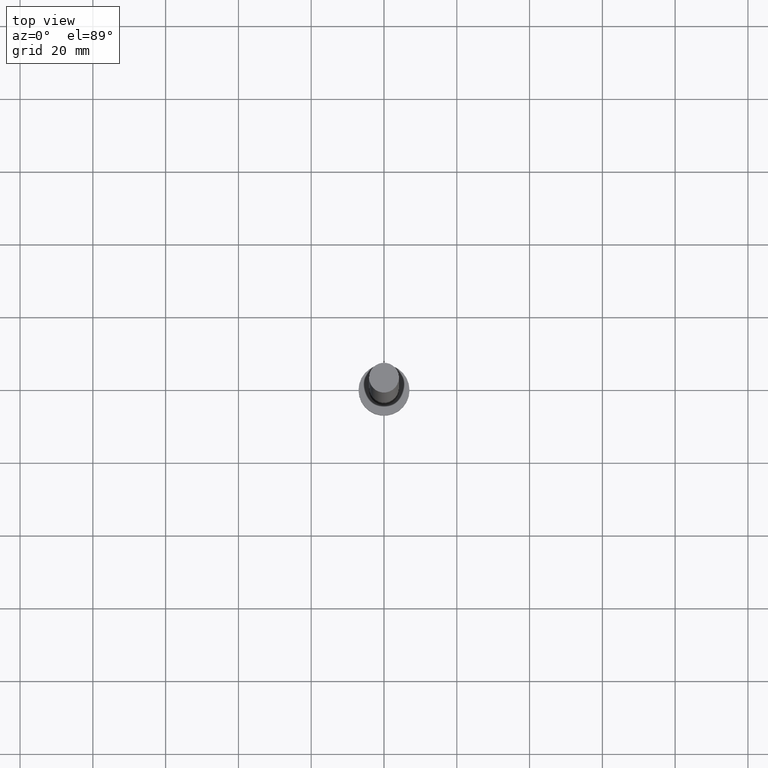
[diagram: clean part render]
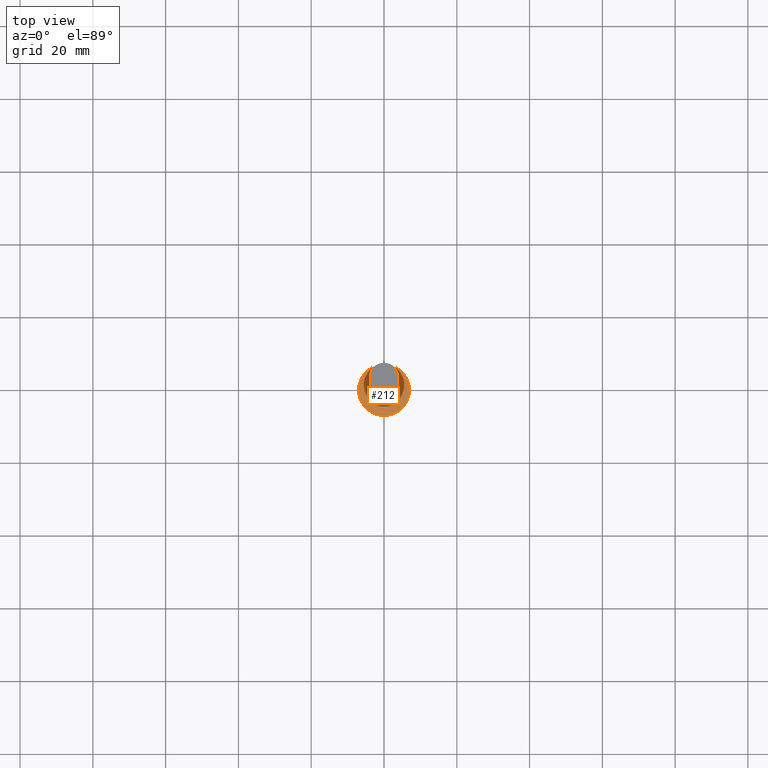
[diagram: same view with one face highlighted and labeled with its STEP entity id]
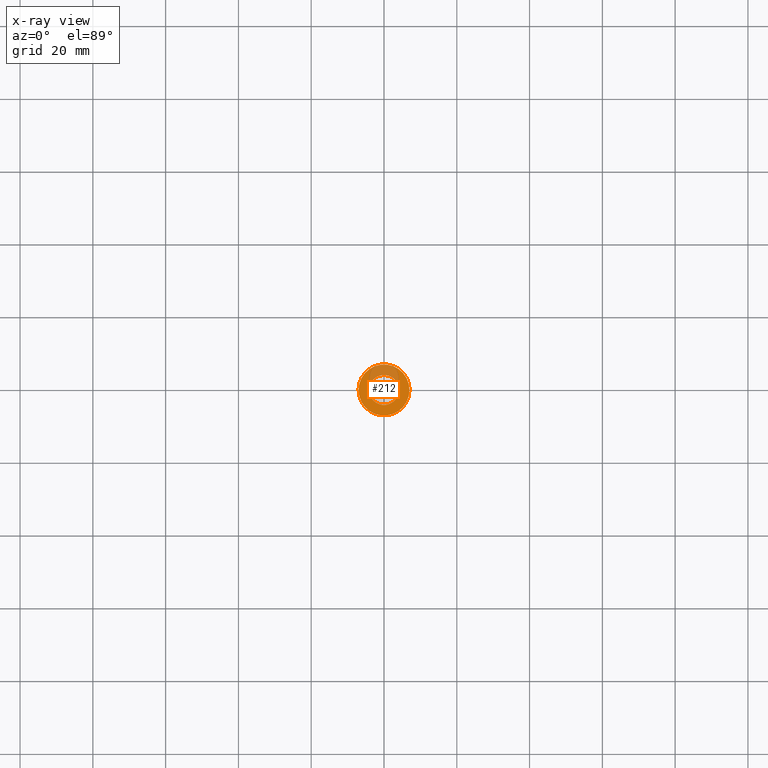
[diagram: x-ray of the same camera — body ghosted, the highlighted face saturated]
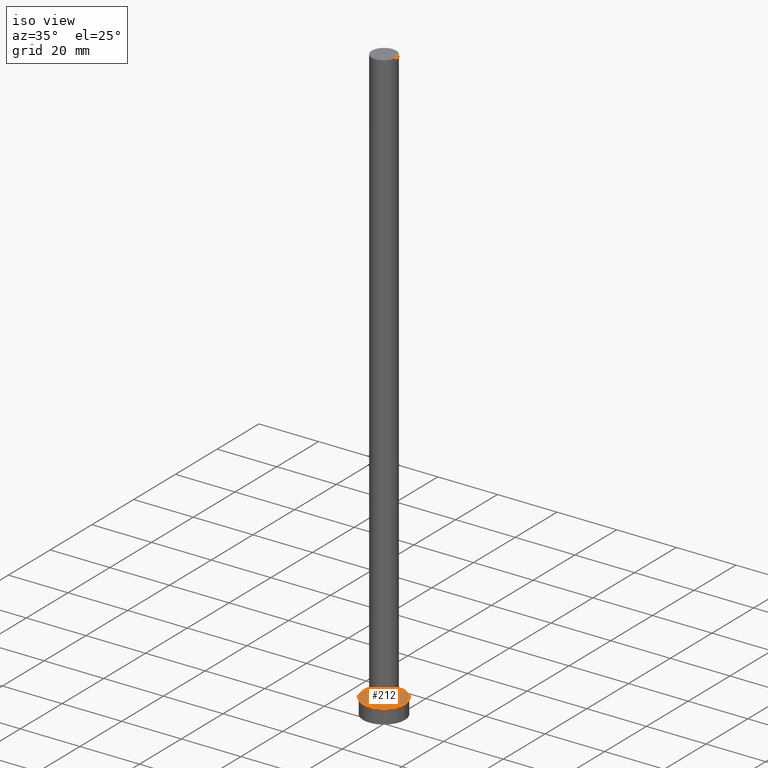
[diagram: same view with one face highlighted and labeled with its STEP entity id]
A machine part, top view. The second image highlights one B-rep face of the part: STEP entity #212.
The next image is the same camera in x-ray: the body ghosted, the highlighted face saturated — about 26% of this face is hidden behind the body in this view.
A second angle (iso view) of the same face is appended — the face is thin or edge-on in the first view.
In plain terms, the highlighted planar face has unit normal (0, 0, 1).
Its self-contained STEP definition (entity closure, byte-faithful):
#4 = DIRECTION ( 'NONE',  ( 0.000000000000000000, 0.000000000000000000, 1.000000000000000000 ) ) ;
#9 = CARTESIAN_POINT ( 'NONE',  ( 7.000000000000000000, 8.572527594031473190E-16, 5.000000000000000000 ) ) ;
#14 = EDGE_CURVE ( 'NONE', #32, #193, #102, .T. ) ;
#19 = DIRECTION ( 'NONE',  ( 1.000000000000000000, 0.000000000000000000, 0.000000000000000000 ) ) ;
#22 = DIRECTION ( 'NONE',  ( 1.000000000000000000, 0.000000000000000000, 0.000000000000000000 ) ) ;
#27 = ORIENTED_EDGE ( 'NONE', *, *, #14, .F. ) ;
#32 = VERTEX_POINT ( 'NONE', #54 ) ;
#34 = ORIENTED_EDGE ( 'NONE', *, *, #78, .T. ) ;
#35 = EDGE_CURVE ( 'NONE', #170, #93, #204, .T. ) ;
#39 = CARTESIAN_POINT ( 'NONE',  ( 0.000000000000000000, 0.000000000000000000, 5.000000000000000000 ) ) ;
#54 = CARTESIAN_POINT ( 'NONE',  ( 4.099999999999999645, 5.021051876504147385E-16, 5.000000000000000000 ) ) ;
#56 = AXIS2_PLACEMENT_3D ( 'NONE', #98, #155, #22 ) ;
#59 = PLANE ( 'NONE',  #205 ) ;
#60 = CARTESIAN_POINT ( 'NONE',  ( 0.000000000000000000, 0.000000000000000000, 5.000000000000000000 ) ) ;
#63 = ORIENTED_EDGE ( 'NONE', *, *, #35, .T. ) ;
#73 = CARTESIAN_POINT ( 'NONE',  ( -7.000000000000000000, 0.000000000000000000, 5.000000000000000000 ) ) ;
#78 = EDGE_CURVE ( 'NONE', #93, #170, #241, .T. ) ;
#93 = VERTEX_POINT ( 'NONE', #9 ) ;
#98 = CARTESIAN_POINT ( 'NONE',  ( 0.000000000000000000, 0.000000000000000000, 5.000000000000000000 ) ) ;
#99 = CARTESIAN_POINT ( 'NONE',  ( 0.000000000000000000, 0.000000000000000000, 5.000000000000000000 ) ) ;
#102 = CIRCLE ( 'NONE', #133, 4.099999999999999645 ) ;
#103 = CIRCLE ( 'NONE', #164, 4.099999999999999645 ) ;
#115 = FACE_BOUND ( 'NONE', #125, .T. ) ;
#121 = CARTESIAN_POINT ( 'NONE',  ( -4.099999999999999645, 0.000000000000000000, 5.000000000000000000 ) ) ;
#125 = EDGE_LOOP ( 'NONE', ( #129, #27 ) ) ;
#126 = AXIS2_PLACEMENT_3D ( 'NONE', #158, #162, #19 ) ;
#129 = ORIENTED_EDGE ( 'NONE', *, *, #136, .F. ) ;
#133 = AXIS2_PLACEMENT_3D ( 'NONE', #99, #201, #219 ) ;
#136 = EDGE_CURVE ( 'NONE', #193, #32, #103, .T. ) ;
#137 = DIRECTION ( 'NONE',  ( 1.000000000000000000, 0.000000000000000000, -0.000000000000000000 ) ) ;
#140 = DIRECTION ( 'NONE',  ( 0.000000000000000000, 0.000000000000000000, 1.000000000000000000 ) ) ;
#144 = FACE_OUTER_BOUND ( 'NONE', #252, .T. ) ;
#155 = DIRECTION ( 'NONE',  ( 0.000000000000000000, 0.000000000000000000, 1.000000000000000000 ) ) ;
#158 = CARTESIAN_POINT ( 'NONE',  ( 0.000000000000000000, 0.000000000000000000, 5.000000000000000000 ) ) ;
#162 = DIRECTION ( 'NONE',  ( 0.000000000000000000, 0.000000000000000000, 1.000000000000000000 ) ) ;
#164 = AXIS2_PLACEMENT_3D ( 'NONE', #60, #140, #214 ) ;
#170 = VERTEX_POINT ( 'NONE', #73 ) ;
#193 = VERTEX_POINT ( 'NONE', #121 ) ;
#201 = DIRECTION ( 'NONE',  ( 0.000000000000000000, 0.000000000000000000, 1.000000000000000000 ) ) ;
#204 = CIRCLE ( 'NONE', #56, 7.000000000000000000 ) ;
#205 = AXIS2_PLACEMENT_3D ( 'NONE', #39, #4, #137 ) ;
#212 = ADVANCED_FACE ( 'NONE', ( #115, #144 ), #59, .T. ) ;
#214 = DIRECTION ( 'NONE',  ( 1.000000000000000000, 0.000000000000000000, 0.000000000000000000 ) ) ;
#219 = DIRECTION ( 'NONE',  ( 1.000000000000000000, 0.000000000000000000, 0.000000000000000000 ) ) ;
#241 = CIRCLE ( 'NONE', #126, 7.000000000000000000 ) ;
#252 = EDGE_LOOP ( 'NONE', ( #63, #34 ) ) ;